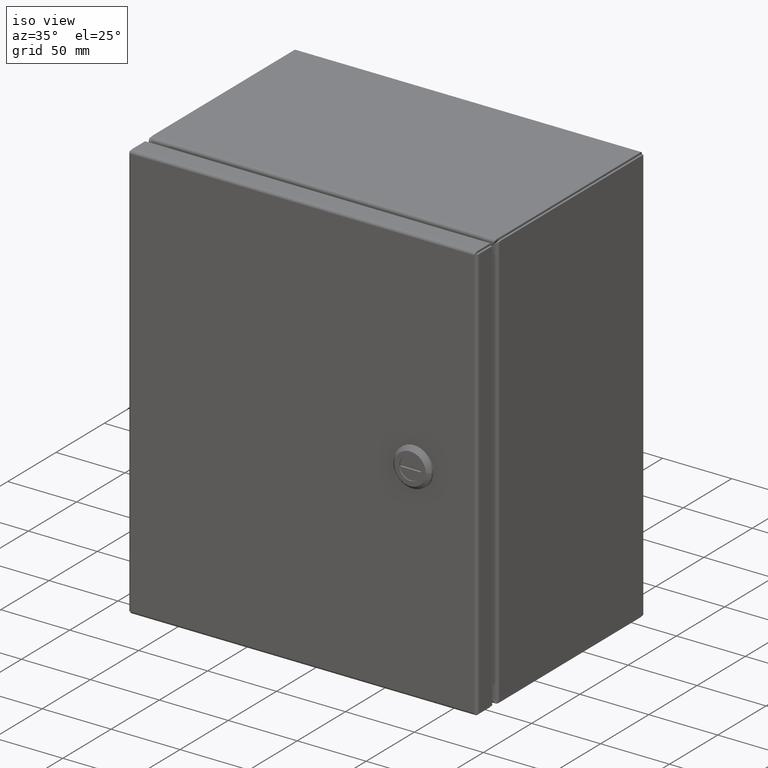
[diagram: clean part render]
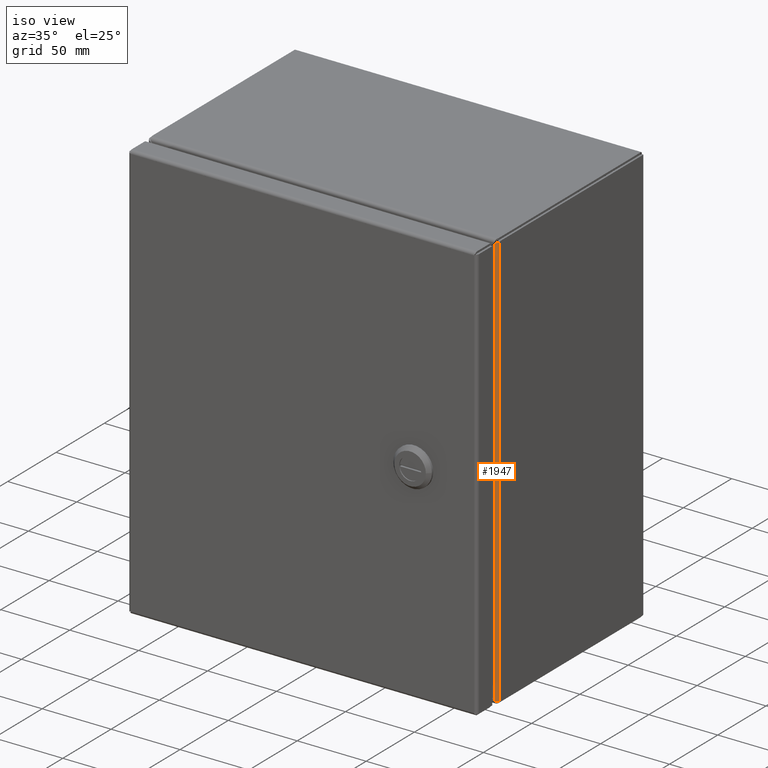
[diagram: same view with one face highlighted and labeled with its STEP entity id]
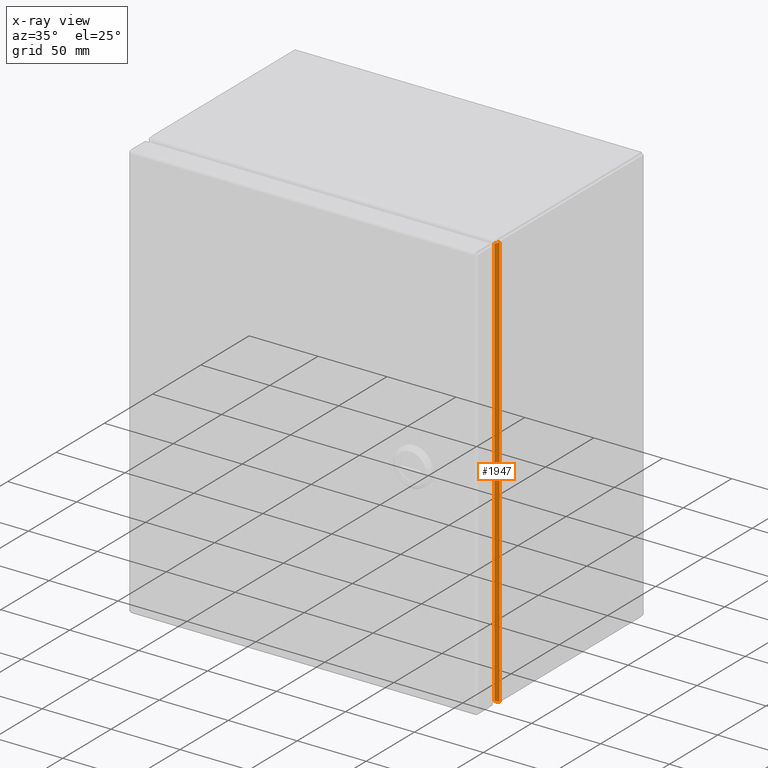
[diagram: x-ray of the same camera — body ghosted, the highlighted face saturated]
A machine part, iso view. The second image highlights one B-rep face of the part: STEP entity #1947.
The next image is the same camera in x-ray: the body ghosted, the highlighted face saturated — about 0% of this face is hidden behind the body in this view.
In plain terms, the highlighted cylindrical surface (edge-blend (fillet) strip) has radius 2.1844 mm, axis along (-0, 0, -1).
Its self-contained STEP definition (entity closure, byte-faithful):
#133 = LINE ( 'NONE', #8937, #10562 ) ;
#404 = B_SPLINE_CURVE_WITH_KNOTS ( 'NONE', 3,
 ( #20634, #5060, #22914, #4512, #13866, #22647, #13351, #7365, #22786, #21974, #885, #9700, #18468, #27314 ),
 .UNSPECIFIED., .F., .F.,
 ( 4, 2, 2, 2, 2, 2, 4 ),
 ( 0.0000000000000000000, 0.0004414838468056716462, 0.0008829676936113432925, 0.001324451540417014885, 0.001765935387222686585, 0.002648903080834029769, 0.003531870774445373170 ),
 .UNSPECIFIED. ) ;
#885 = CARTESIAN_POINT ( 'NONE',  ( 4.956470795602426094, -5.989592842795533834, 5.915430470730208334 ) ) ;
#1947 = ADVANCED_FACE ( 'NONE', ( #28426 ), #19708, .T. ) ;
#2239 = EDGE_CURVE ( 'NONE', #14980, #8070, #404, .T. ) ;
#3183 = ORIENTED_EDGE ( 'NONE', *, *, #20874, .T. ) ;
#3989 = ORIENTED_EDGE ( 'NONE', *, *, #20615, .T. ) ;
#4393 = ORIENTED_EDGE ( 'NONE', *, *, #19779, .T. ) ;
#4512 = CARTESIAN_POINT ( 'NONE',  ( 4.997141894304752974, -5.936716776192205280, 5.931457834301530063 ) ) ;
#4652 = CARTESIAN_POINT ( 'NONE',  ( 4.914000000000001478, -5.999999999999999112, 5.900296347159402544 ) ) ;
#4801 = VERTEX_POINT ( 'NONE', #9581 ) ;
#5060 = CARTESIAN_POINT ( 'NONE',  ( 4.999999999999999112, -5.919816244740595756, 5.934340971197110903 ) ) ;
#5366 = LINE ( 'NONE', #12299, #27929 ) ;
#6060 = CARTESIAN_POINT ( 'NONE',  ( 4.982174199124647096, -5.967642428836141377, -5.924394889188454805 ) ) ;
#7365 = CARTESIAN_POINT ( 'NONE',  ( 4.981852133487731926, -5.967144141151980108, 5.924335833936218876 ) ) ;
#8070 = VERTEX_POINT ( 'NONE', #4652 ) ;
#8937 = CARTESIAN_POINT ( 'NONE',  ( 5.000000000000002665, -5.914000000000000590, -41.44149999999999778 ) ) ;
#9055 = DIRECTION ( 'NONE',  ( -2.636823467938440040E-17, 1.577437962174079970E-16, -1.000000000000000000 ) ) ;
#9581 = CARTESIAN_POINT ( 'NONE',  ( 5.000000000000000888, -5.914000000000000590, -5.935186267529998894 ) ) ;
#9700 = CARTESIAN_POINT ( 'NONE',  ( 4.935986014052129001, -5.997872889225976500, 5.908426434709946662 ) ) ;
#10428 = CARTESIAN_POINT ( 'NONE',  ( 4.919466277091627759, -6.000000000000001776, -5.902429429314462794 ) ) ;
#10450 = B_SPLINE_CURVE_WITH_KNOTS ( 'NONE', 3,
 ( #14734, #10428, #28043, #21360, #10841, #19473, #19757, #15149, #17305, #6060, #10983, #21501, #21768, #17455 ),
 .UNSPECIFIED., .F., .F.,
 ( 4, 2, 2, 2, 2, 2, 4 ),
 ( 6.206335383118182794E-17, 0.0004407955661279885744, 0.0008815911322559150240, 0.001322386698383841690, 0.001763182264511768032, 0.002644773396767543736, 0.003526364529023319223 ),
 .UNSPECIFIED. ) ;
#10562 = VECTOR ( 'NONE', #24044, 39.37007874015748143 ) ;
#10841 = CARTESIAN_POINT ( 'NONE',  ( 4.940941918791023291, -5.995860616485277461, -5.910120591506822230 ) ) ;
#10983 = CARTESIAN_POINT ( 'NONE',  ( 4.988772438992409519, -5.958015238702820682, -5.926977366675145298 ) ) ;
#12299 = CARTESIAN_POINT ( 'NONE',  ( 4.914000000000000590, -6.000000000000000888, 5.935186267530000670 ) ) ;
#13351 = CARTESIAN_POINT ( 'NONE',  ( 4.988247705326512182, -5.957766311374915524, 5.926905437626113660 ) ) ;
#13866 = CARTESIAN_POINT ( 'NONE',  ( 4.995423294236386980, -5.942264995168224928, 5.930382707939496179 ) ) ;
#14563 = CARTESIAN_POINT ( 'NONE',  ( 4.913999999999999702, -5.999999999999999112, -5.900296347159402544 ) ) ;
#14734 = CARTESIAN_POINT ( 'NONE',  ( 4.913999999999999702, -5.999999999999999112, -5.900296347159402544 ) ) ;
#14956 = CARTESIAN_POINT ( 'NONE',  ( 5.000000000000002665, -5.914000000000000590, 5.935186267530001558 ) ) ;
#14980 = VERTEX_POINT ( 'NONE', #14956 ) ;
#15149 = CARTESIAN_POINT ( 'NONE',  ( 4.965526713685804339, -5.983079290711140530, -5.918500661604005231 ) ) ;
#17305 = CARTESIAN_POINT ( 'NONE',  ( 4.969964533203051538, -5.979546006154421889, -5.920032447522174834 ) ) ;
#17455 = CARTESIAN_POINT ( 'NONE',  ( 5.000000000000000888, -5.914000000000000590, -5.935186267529998894 ) ) ;
#17976 = CARTESIAN_POINT ( 'NONE',  ( 4.914000000000000590, -5.914000000000000590, 5.935186267530000670 ) ) ;
#18468 = CARTESIAN_POINT ( 'NONE',  ( 4.924940721854043524, -6.000000000000001776, 5.904565698705096288 ) ) ;
#19269 = AXIS2_PLACEMENT_3D ( 'NONE', #17976, #9055, #26810 ) ;
#19352 = ORIENTED_EDGE ( 'NONE', *, *, #2239, .T. ) ;
#19473 = CARTESIAN_POINT ( 'NONE',  ( 4.951276763214790044, -5.991701161147823917, -5.913654887069098365 ) ) ;
#19708 = CYLINDRICAL_SURFACE ( 'NONE', #19269, 0.08600000000000011802 ) ;
#19757 = CARTESIAN_POINT ( 'NONE',  ( 4.956197039659058667, -5.989142268214531661, -5.915316669292565166 ) ) ;
#19779 = EDGE_CURVE ( 'NONE', #24143, #4801, #10450, .T. ) ;
#20615 = EDGE_CURVE ( 'NONE', #4801, #14980, #133, .T. ) ;
#20634 = CARTESIAN_POINT ( 'NONE',  ( 5.000000000000002665, -5.914000000000000590, 5.935186267530001558 ) ) ;
#20874 = EDGE_CURVE ( 'NONE', #8070, #24143, #5366, .T. ) ;
#21360 = CARTESIAN_POINT ( 'NONE',  ( 4.935604845737712409, -5.997420709012511786, -5.908273468216785673 ) ) ;
#21501 = CARTESIAN_POINT ( 'NONE',  ( 4.997710285907276173, -5.936822070551601271, -5.931557232608601460 ) ) ;
#21768 = CARTESIAN_POINT ( 'NONE',  ( 5.000000000000000888, -5.925623859640070101, -5.933496929070913417 ) ) ;
#21974 = CARTESIAN_POINT ( 'NONE',  ( 4.966098610516634260, -5.983340423270696817, 5.918649438043686040 ) ) ;
#22647 = CARTESIAN_POINT ( 'NONE',  ( 4.990967092757376378, -5.952790842071839172, 5.928104631632896471 ) ) ;
#22786 = CARTESIAN_POINT ( 'NONE',  ( 4.978152651217874869, -5.971550214778039489, 5.922958899200965632 ) ) ;
#22914 = CARTESIAN_POINT ( 'NONE',  ( 4.999415936014044881, -5.925521474905347752, 5.933430612040117680 ) ) ;
#24044 = DIRECTION ( 'NONE',  ( 2.636823467938429563E-17, 9.790555080576894867E-33, 1.000000000000000000 ) ) ;
#24143 = VERTEX_POINT ( 'NONE', #14563 ) ;
#26657 = DIRECTION ( 'NONE',  ( -2.636823467938440040E-17, 1.577437962174079970E-16, -1.000000000000000000 ) ) ;
#26810 = DIRECTION ( 'NONE',  ( 0.0000000000000000000, 1.000000000000000000, 0.0000000000000000000 ) ) ;
#26972 = EDGE_LOOP ( 'NONE', ( #3183, #4393, #3989, #19352 ) ) ;
#27314 = CARTESIAN_POINT ( 'NONE',  ( 4.914000000000001478, -5.999999999999999112, 5.900296347159402544 ) ) ;
#27929 = VECTOR ( 'NONE', #26657, 39.37007874015748143 ) ;
#28043 = CARTESIAN_POINT ( 'NONE',  ( 4.924886407174738245, -5.999482572436295236, -5.904434399889943563 ) ) ;
#28426 = FACE_OUTER_BOUND ( 'NONE', #26972, .T. ) ;